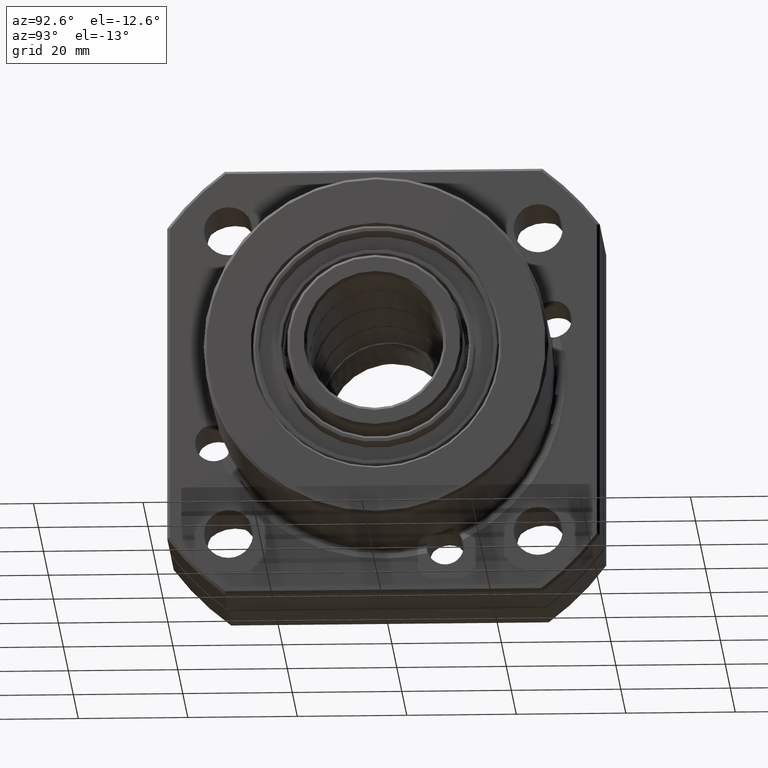
[diagram: clean part render]
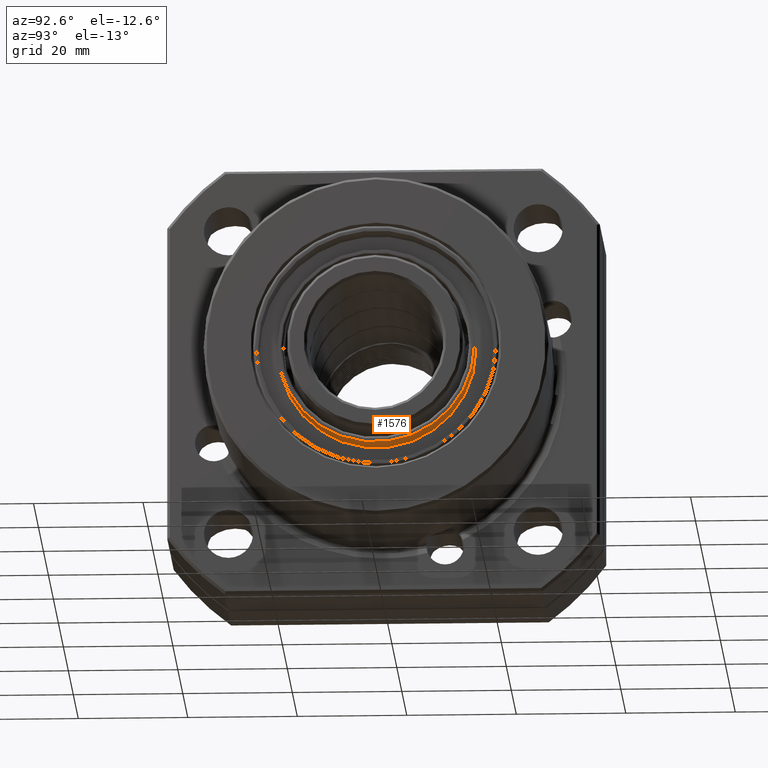
[diagram: same view with one face highlighted and labeled with its STEP entity id]
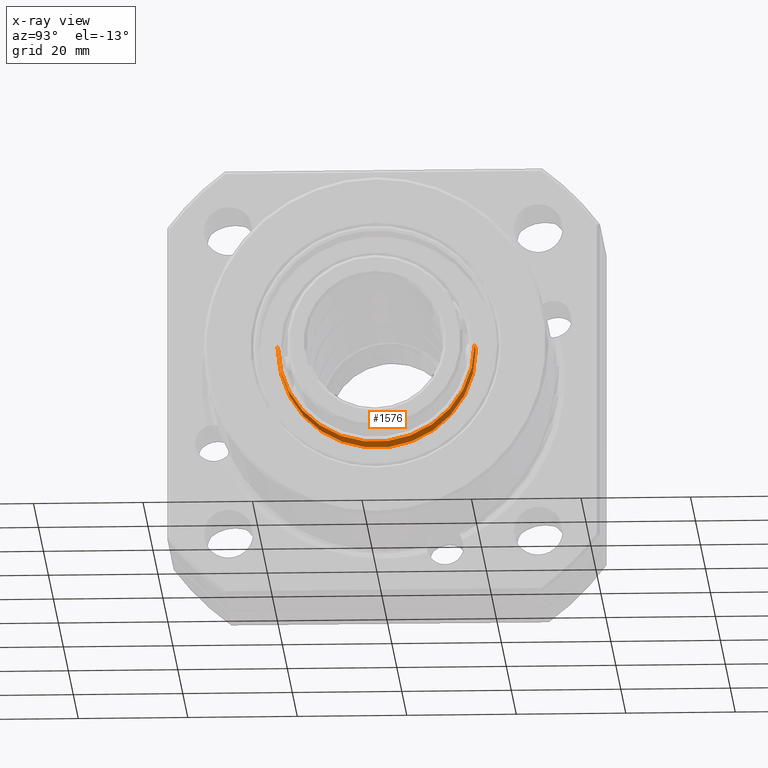
[diagram: x-ray of the same camera — body ghosted, the highlighted face saturated]
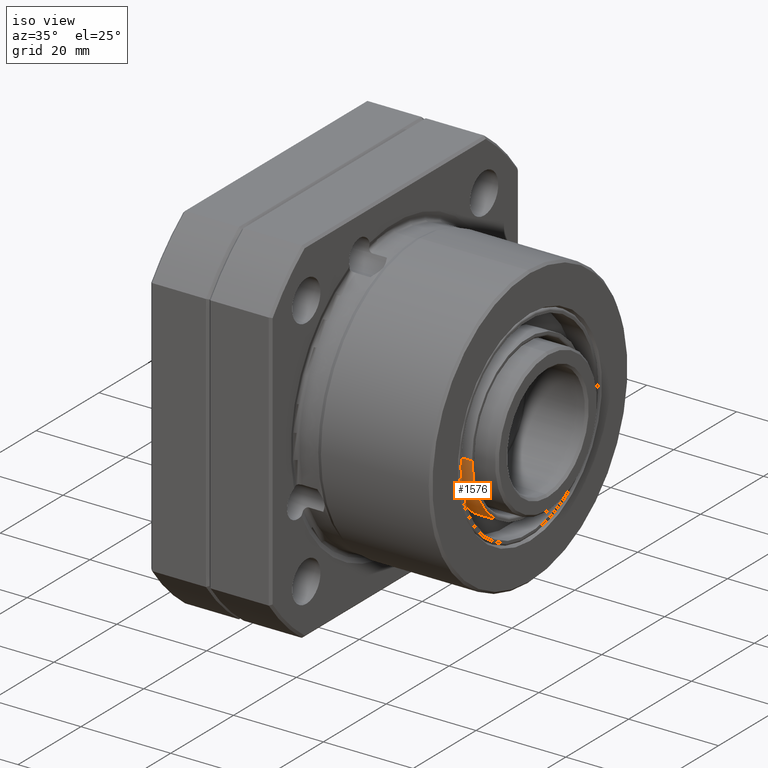
[diagram: same view with one face highlighted and labeled with its STEP entity id]
A machine part, auxiliary view. The second image highlights one B-rep face of the part: STEP entity #1576.
The next image is the same camera in x-ray: the body ghosted, the highlighted face saturated — about 0% of this face is hidden behind the body in this view.
A second angle (iso view) of the same face is appended — the face is thin or edge-on in the first view.
In plain terms, the highlighted cylindrical surface (partial cylindrical patch) has radius 18 mm, axis along (1, 0, 0).
Its self-contained STEP definition (entity closure, byte-faithful):
#1556 = ORIENTED_EDGE ( 'NONE', *, *, #1557, .F. ) ;
#1557 = EDGE_CURVE ( 'NONE', #1558, #1584, #19057, .T. ) ;
#1558 = VERTEX_POINT ( 'NONE', #19052 ) ;
#1559 = ORIENTED_EDGE ( 'NONE', *, *, #1560, .F. ) ;
#1560 = EDGE_CURVE ( 'NONE', #1580, #1558, #19114, .T. ) ;
#1576 = ADVANCED_FACE ( 'NONE', ( #19141 ), #19139, .T. ) ;
#1577 = EDGE_LOOP ( 'NONE', ( #1578, #1582, #1556, #1559 ) ) ;
#1578 = ORIENTED_EDGE ( 'NONE', *, *, #1579, .T. ) ;
#1579 = EDGE_CURVE ( 'NONE', #1580, #1581, #19140, .T. ) ;
#1580 = VERTEX_POINT ( 'NONE', #19130 ) ;
#1581 = VERTEX_POINT ( 'NONE', #19129 ) ;
#1582 = ORIENTED_EDGE ( 'NONE', *, *, #1583, .T. ) ;
#1583 = EDGE_CURVE ( 'NONE', #1581, #1584, #19128, .T. ) ;
#1584 = VERTEX_POINT ( 'NONE', #19124 ) ;
#19052 = CARTESIAN_POINT ( 'NONE',  ( 43.69999999999995300, -18.00000000000003900, 2.938458155818638800E-015 ) ) ;
#19053 = DIRECTION ( 'NONE',  ( 0.0000000000000000000, -1.000000000000000000, 1.632476753232575400E-016 ) ) ;
#19054 = DIRECTION ( 'NONE',  ( 1.000000000000000000, 1.725633230170963500E-031, 2.031196429125632100E-031 ) ) ;
#19055 = CARTESIAN_POINT ( 'NONE',  ( 43.69999999999995300, 3.235562306570556200E-029, -3.203794089861274000E-030 ) ) ;
#19056 = AXIS2_PLACEMENT_3D ( 'NONE', #19055, #19054, #19053 ) ;
#19057 = CIRCLE ( 'NONE', #19056, 18.00000000000003900 ) ;
#19111 = DIRECTION ( 'NONE',  ( 1.000000000000000000, 1.725633230170963500E-031, 2.031196429125632100E-031 ) ) ;
#19112 = VECTOR ( 'NONE', #19111, 1000.000000000000000 ) ;
#19113 = CARTESIAN_POINT ( 'NONE',  ( 93.34089506172831800, -18.00000000000003900, 2.938458155818648700E-015 ) ) ;
#19114 = LINE ( 'NONE', #19113, #19112 ) ;
#19124 = CARTESIAN_POINT ( 'NONE',  ( 43.69999999999995300, 17.99999999999999300, -5.142749592698915100E-015 ) ) ;
#19125 = DIRECTION ( 'NONE',  ( 1.000000000000000000, 1.725633230170963500E-031, 2.031196429125632100E-031 ) ) ;
#19126 = VECTOR ( 'NONE', #19125, 1000.000000000000000 ) ;
#19127 = CARTESIAN_POINT ( 'NONE',  ( 93.34089506172831800, 18.00000000000003900, -5.142749592698917500E-015 ) ) ;
#19128 = LINE ( 'NONE', #19127, #19126 ) ;
#19129 = CARTESIAN_POINT ( 'NONE',  ( 38.69999999999996000, 17.99999999999999300, -5.142749592698915100E-015 ) ) ;
#19130 = CARTESIAN_POINT ( 'NONE',  ( 38.69999999999996000, -18.00000000000003900, 2.938458155818637200E-015 ) ) ;
#19131 = DIRECTION ( 'NONE',  ( 0.0000000000000000000, -1.000000000000000000, 1.632476753232575400E-016 ) ) ;
#19132 = DIRECTION ( 'NONE',  ( 1.000000000000000000, 1.725633230170963500E-031, 2.031196429125632100E-031 ) ) ;
#19133 = CARTESIAN_POINT ( 'NONE',  ( 38.69999999999996000, 2.773339119917619600E-029, -4.682908287150672500E-030 ) ) ;
#19134 = AXIS2_PLACEMENT_3D ( 'NONE', #19133, #19132, #19131 ) ;
#19135 = DIRECTION ( 'NONE',  ( 0.0000000000000000000, -1.000000000000000000, 1.632476753232575400E-016 ) ) ;
#19136 = DIRECTION ( 'NONE',  ( 1.000000000000000000, 1.725633230170963500E-031, 2.031196429125632100E-031 ) ) ;
#19137 = CARTESIAN_POINT ( 'NONE',  ( 93.34089506172831800, 4.314083075427408300E-029, 6.584356337730170700E-030 ) ) ;
#19138 = AXIS2_PLACEMENT_3D ( 'NONE', #19137, #19136, #19135 ) ;
#19139 = CYLINDRICAL_SURFACE ( 'NONE', #19138, 18.00000000000003900 ) ;
#19140 = CIRCLE ( 'NONE', #19134, 18.00000000000003900 ) ;
#19141 = FACE_OUTER_BOUND ( 'NONE', #1577, .T. ) ;